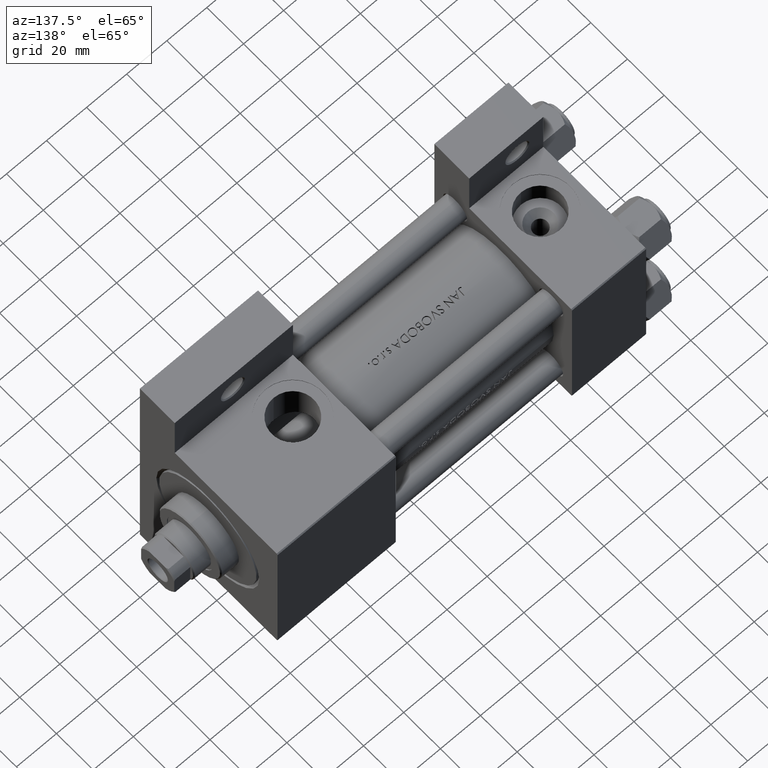
[diagram: clean part render]
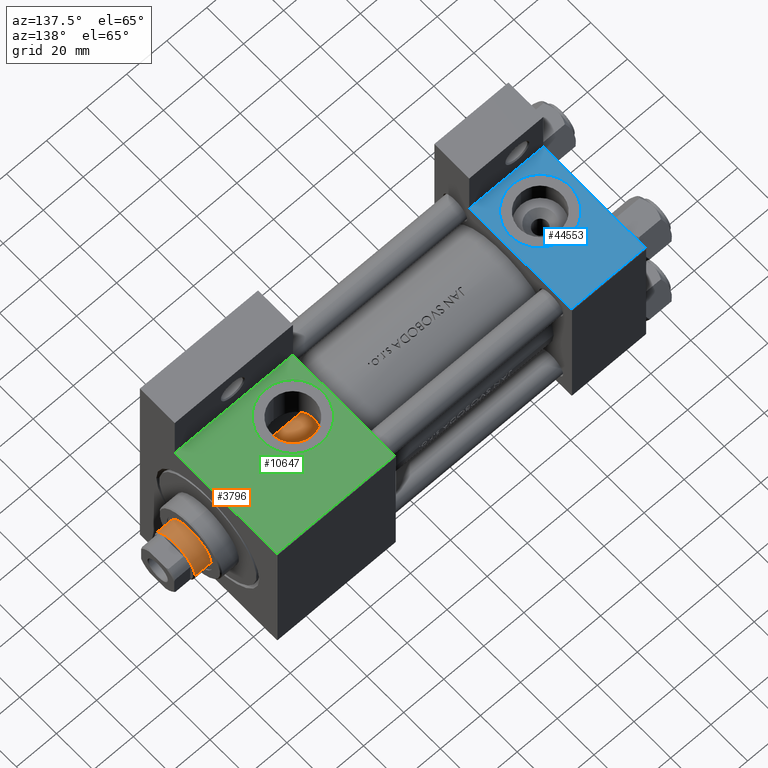
[diagram: same view with three faces highlighted in distinct colors, each labeled with its STEP entity id]
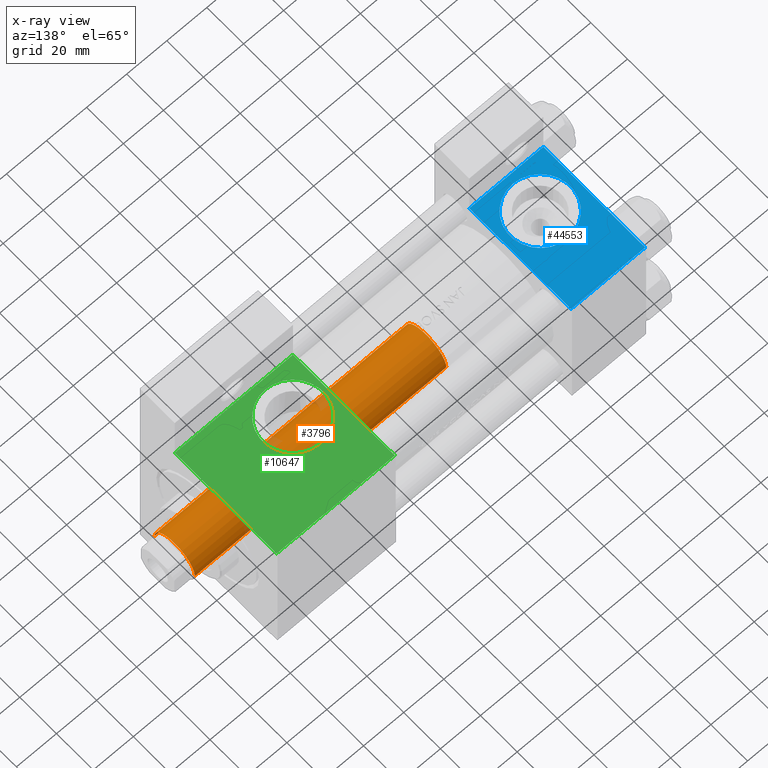
[diagram: x-ray of the same camera — body ghosted, the three highlighted faces saturated]
A machine part, auxiliary view with three faces highlighted in distinct colors.
The next image is the same camera in x-ray (body ghosted, the three faces saturated) — at least one of them is partly hidden behind the body in this view.
Their STEP definitions:

[orange] entity #3796 — the highlighted cylindrical surface (edge-blend (fillet) strip) has radius 11 mm, axis along (-1, 0, 0).
#1158 = CARTESIAN_POINT ( 'NONE',  ( 11.00000000000000000, 1.347111479062088405E-15, 163.5000000000000284 ) ) ;
#3750 = DIRECTION ( 'NONE',  ( -0.000000000000000000, -0.000000000000000000, -1.000000000000000000 ) ) ;
#3796 = ADVANCED_FACE ( 'NONE', ( #19197 ), #41603, .T. ) ;
#4563 = EDGE_CURVE ( 'NONE', #37420, #40276, #7387, .T. ) ;
#4701 = CIRCLE ( 'NONE', #26973, 11.00000000000000000 ) ;
#4931 = CARTESIAN_POINT ( 'NONE',  ( 11.00000000000000000, 1.347111479062088405E-15, 38.00000000000000000 ) ) ;
#5789 = CARTESIAN_POINT ( 'NONE',  ( 11.00000000000000000, 1.347111479062088405E-15, 164.0000000000000000 ) ) ;
#6078 = ORIENTED_EDGE ( 'NONE', *, *, #46017, .T. ) ;
#6602 = VECTOR ( 'NONE', #12764, 1000.000000000000000 ) ;
#6999 = DIRECTION ( 'NONE',  ( 0.000000000000000000, 0.000000000000000000, 1.000000000000000000 ) ) ;
#7387 = CIRCLE ( 'NONE', #48756, 11.00000000000000000 ) ;
#12764 = DIRECTION ( 'NONE',  ( -0.000000000000000000, -0.000000000000000000, -1.000000000000000000 ) ) ;
#14421 = EDGE_CURVE ( 'NONE', #37750, #40276, #27709, .T. ) ;
#14835 = VERTEX_POINT ( 'NONE', #42217 ) ;
#15222 = DIRECTION ( 'NONE',  ( -1.000000000000000000, 0.000000000000000000, 0.000000000000000000 ) ) ;
#15914 = DIRECTION ( 'NONE',  ( 0.000000000000000000, 0.000000000000000000, -1.000000000000000000 ) ) ;
#18700 = VECTOR ( 'NONE', #24311, 1000.000000000000000 ) ;
#19197 = FACE_OUTER_BOUND ( 'NONE', #34118, .T. ) ;
#22204 = CARTESIAN_POINT ( 'NONE',  ( 0.000000000000000000, 0.000000000000000000, 164.0000000000000000 ) ) ;
#23137 = EDGE_CURVE ( 'NONE', #14835, #37420, #28041, .T. ) ;
#24311 = DIRECTION ( 'NONE',  ( -0.000000000000000000, -0.000000000000000000, -1.000000000000000000 ) ) ;
#25462 = CARTESIAN_POINT ( 'NONE',  ( 0.000000000000000000, 0.000000000000000000, 38.00000000000000000 ) ) ;
#26621 = DIRECTION ( 'NONE',  ( 1.000000000000000000, 0.000000000000000000, 0.000000000000000000 ) ) ;
#26973 = AXIS2_PLACEMENT_3D ( 'NONE', #34807, #15914, #26621 ) ;
#27709 = LINE ( 'NONE', #5789, #6602 ) ;
#28041 = LINE ( 'NONE', #28537, #18700 ) ;
#28537 = CARTESIAN_POINT ( 'NONE',  ( -11.00000000000000000, 0.000000000000000000, 164.0000000000000000 ) ) ;
#32055 = AXIS2_PLACEMENT_3D ( 'NONE', #22204, #3750, #15222 ) ;
#32611 = ORIENTED_EDGE ( 'NONE', *, *, #4563, .T. ) ;
#34118 = EDGE_LOOP ( 'NONE', ( #44376, #6078, #42485, #32611 ) ) ;
#34807 = CARTESIAN_POINT ( 'NONE',  ( 0.000000000000000000, 0.000000000000000000, 163.5000000000000284 ) ) ;
#35592 = CARTESIAN_POINT ( 'NONE',  ( -11.00000000000000000, 0.000000000000000000, 38.00000000000000000 ) ) ;
#37420 = VERTEX_POINT ( 'NONE', #35592 ) ;
#37750 = VERTEX_POINT ( 'NONE', #1158 ) ;
#40276 = VERTEX_POINT ( 'NONE', #4931 ) ;
#41603 = CYLINDRICAL_SURFACE ( 'NONE', #32055, 11.00000000000000000 ) ;
#42217 = CARTESIAN_POINT ( 'NONE',  ( -11.00000000000000000, 0.000000000000000000, 163.5000000000000284 ) ) ;
#42485 = ORIENTED_EDGE ( 'NONE', *, *, #23137, .T. ) ;
#44376 = ORIENTED_EDGE ( 'NONE', *, *, #14421, .F. ) ;
#44845 = DIRECTION ( 'NONE',  ( 1.000000000000000000, 0.000000000000000000, 0.000000000000000000 ) ) ;
#46017 = EDGE_CURVE ( 'NONE', #37750, #14835, #4701, .T. ) ;
#48756 = AXIS2_PLACEMENT_3D ( 'NONE', #25462, #6999, #44845 ) ;

[blue] entity #44553 — the highlighted planar face has unit normal (0, 0, -1).
#1093 = EDGE_CURVE ( 'NONE', #21334, #26931, #8102, .T. ) ;
#1738 = VERTEX_POINT ( 'NONE', #35244 ) ;
#2004 = LINE ( 'NONE', #17953, #6841 ) ;
#2826 = FACE_BOUND ( 'NONE', #12936, .T. ) ;
#3724 = ORIENTED_EDGE ( 'NONE', *, *, #24806, .F. ) ;
#4115 = AXIS2_PLACEMENT_3D ( 'NONE', #26142, #36590, #41560 ) ;
#5953 = ORIENTED_EDGE ( 'NONE', *, *, #1093, .F. ) ;
#6179 = CIRCLE ( 'NONE', #48283, 15.00000000000000178 ) ;
#6841 = VECTOR ( 'NONE', #32390, 1000.000000000000000 ) ;
#6910 = DIRECTION ( 'NONE',  ( 0.000000000000000000, 0.000000000000000000, -1.000000000000000000 ) ) ;
#8102 = CIRCLE ( 'NONE', #4115, 15.00000000000000178 ) ;
#8939 = LINE ( 'NONE', #31349, #15608 ) ;
#10622 = VERTEX_POINT ( 'NONE', #35706 ) ;
#11292 = DIRECTION ( 'NONE',  ( 0.000000000000000000, -9.251858538542971581E-17, 1.000000000000000000 ) ) ;
#11886 = DIRECTION ( 'NONE',  ( 0.000000000000000000, -1.000000000000000000, -8.673617379884036705E-17 ) ) ;
#12936 = EDGE_LOOP ( 'NONE', ( #39940, #5953 ) ) ;
#13652 = EDGE_LOOP ( 'NONE', ( #3724, #29020, #43970, #15569 ) ) ;
#15036 = PLANE ( 'NONE',  #22957 ) ;
#15569 = ORIENTED_EDGE ( 'NONE', *, *, #24970, .T. ) ;
#15608 = VECTOR ( 'NONE', #31837, 1000.000000000000000 ) ;
#16726 = VERTEX_POINT ( 'NONE', #29624 ) ;
#17114 = VECTOR ( 'NONE', #39768, 1000.000000000000000 ) ;
#17953 = CARTESIAN_POINT ( 'NONE',  ( -7.145701223179000102E-16, -37.50000000000001421, -18.49999999999999645 ) ) ;
#20870 = CARTESIAN_POINT ( 'NONE',  ( 37.00000000000000000, -37.50000000000000711, 37.49999999999999289 ) ) ;
#21334 = VERTEX_POINT ( 'NONE', #22796 ) ;
#21920 = EDGE_CURVE ( 'NONE', #10622, #16726, #31054, .T. ) ;
#22796 = CARTESIAN_POINT ( 'NONE',  ( 18.50000000000000355, -37.50000000000000711, 14.99999999999999822 ) ) ;
#22957 = AXIS2_PLACEMENT_3D ( 'NONE', #48399, #30212, #11292 ) ;
#24806 = EDGE_CURVE ( 'NONE', #16726, #1738, #2004, .T. ) ;
#24970 = EDGE_CURVE ( 'NONE', #30023, #1738, #8939, .T. ) ;
#26142 = CARTESIAN_POINT ( 'NONE',  ( 18.50000000000000000, -37.50000000000000711, -3.469446951953614978E-15 ) ) ;
#26419 = EDGE_CURVE ( 'NONE', #10622, #30023, #33286, .T. ) ;
#26931 = VERTEX_POINT ( 'NONE', #47635 ) ;
#28434 = EDGE_CURVE ( 'NONE', #26931, #21334, #6179, .T. ) ;
#29020 = ORIENTED_EDGE ( 'NONE', *, *, #21920, .F. ) ;
#29624 = CARTESIAN_POINT ( 'NONE',  ( 37.00000000000000000, -37.50000000000000000, -18.50000000000000355 ) ) ;
#30023 = VERTEX_POINT ( 'NONE', #46635 ) ;
#30212 = DIRECTION ( 'NONE',  ( -0.000000000000000000, 1.000000000000000000, 9.251858538542971581E-17 ) ) ;
#31054 = LINE ( 'NONE', #20870, #17114 ) ;
#31349 = CARTESIAN_POINT ( 'NONE',  ( 0.000000000000000000, -37.50000000000000711, 37.49999999999999289 ) ) ;
#31837 = DIRECTION ( 'NONE',  ( 0.000000000000000000, 9.251858538542971581E-17, -1.000000000000000000 ) ) ;
#32390 = DIRECTION ( 'NONE',  ( -1.000000000000000000, 0.000000000000000000, 0.000000000000000000 ) ) ;
#33208 = FACE_OUTER_BOUND ( 'NONE', #13652, .T. ) ;
#33286 = LINE ( 'NONE', #41256, #35484 ) ;
#35244 = CARTESIAN_POINT ( 'NONE',  ( -7.145701223179004046E-16, -37.50000000000000711, -18.50000000000000355 ) ) ;
#35484 = VECTOR ( 'NONE', #36779, 1000.000000000000000 ) ;
#35706 = CARTESIAN_POINT ( 'NONE',  ( 37.00000000000000000, -37.50000000000000711, 36.99999999999999289 ) ) ;
#36590 = DIRECTION ( 'NONE',  ( 0.000000000000000000, -1.000000000000000000, -8.673617379884036705E-17 ) ) ;
#36779 = DIRECTION ( 'NONE',  ( -1.000000000000000000, 0.000000000000000000, 0.000000000000000000 ) ) ;
#39768 = DIRECTION ( 'NONE',  ( 0.000000000000000000, 9.251858538542971581E-17, -1.000000000000000000 ) ) ;
#39940 = ORIENTED_EDGE ( 'NONE', *, *, #28434, .F. ) ;
#41256 = CARTESIAN_POINT ( 'NONE',  ( 37.00000000000000000, -37.50000000000000711, 36.99999999999999289 ) ) ;
#41560 = DIRECTION ( 'NONE',  ( 0.000000000000000000, 0.000000000000000000, -1.000000000000000000 ) ) ;
#43970 = ORIENTED_EDGE ( 'NONE', *, *, #26419, .T. ) ;
#44553 = ADVANCED_FACE ( 'NONE', ( #2826, #33208 ), #15036, .F. ) ;
#45986 = CARTESIAN_POINT ( 'NONE',  ( 18.50000000000000000, -37.50000000000000711, -3.469446951953614978E-15 ) ) ;
#46635 = CARTESIAN_POINT ( 'NONE',  ( 0.000000000000000000, -37.50000000000000711, 36.99999999999999289 ) ) ;
#47635 = CARTESIAN_POINT ( 'NONE',  ( 18.50000000000000000, -37.50000000000000711, -15.00000000000000533 ) ) ;
#48283 = AXIS2_PLACEMENT_3D ( 'NONE', #45986, #11886, #6910 ) ;
#48399 = CARTESIAN_POINT ( 'NONE',  ( 37.00000000000000000, -37.50000000000000711, 37.49999999999999289 ) ) ;

[green] entity #10647 — the highlighted planar face has unit normal (0, -0, -1).
#1347 = AXIS2_PLACEMENT_3D ( 'NONE', #33074, #14410, #10175 ) ;
#1616 = CARTESIAN_POINT ( 'NONE',  ( 125.0000000000000000, -37.50000000000000000, -18.50000000000000000 ) ) ;
#1756 = LINE ( 'NONE', #47577, #4593 ) ;
#3420 = VERTEX_POINT ( 'NONE', #34172 ) ;
#4571 = EDGE_CURVE ( 'NONE', #16113, #5887, #9765, .T. ) ;
#4593 = VECTOR ( 'NONE', #5255, 1000.000000000000000 ) ;
#4905 = EDGE_LOOP ( 'NONE', ( #16666, #38513 ) ) ;
#5255 = DIRECTION ( 'NONE',  ( 0.000000000000000000, -9.251858538542972814E-17, -1.000000000000000000 ) ) ;
#5502 = CARTESIAN_POINT ( 'NONE',  ( 125.0000000000000000, -37.50000000000000000, 36.99999999999995026 ) ) ;
#5887 = VERTEX_POINT ( 'NONE', #5502 ) ;
#6239 = DIRECTION ( 'NONE',  ( 0.000000000000000000, 0.000000000000000000, -1.000000000000000000 ) ) ;
#7234 = ORIENTED_EDGE ( 'NONE', *, *, #4571, .T. ) ;
#9765 = LINE ( 'NONE', #47613, #33659 ) ;
#10175 = DIRECTION ( 'NONE',  ( 0.000000000000000000, 0.000000000000000000, -1.000000000000000000 ) ) ;
#10647 = ADVANCED_FACE ( 'NONE', ( #15212, #41343 ), #15459, .F. ) ;
#10731 = DIRECTION ( 'NONE',  ( 0.000000000000000000, 1.000000000000000000, -9.251858538542972814E-17 ) ) ;
#11263 = EDGE_CURVE ( 'NONE', #23017, #3420, #29290, .T. ) ;
#13725 = ORIENTED_EDGE ( 'NONE', *, *, #42683, .T. ) ;
#13948 = CARTESIAN_POINT ( 'NONE',  ( 142.0000000000000284, -37.50000000000000000, 15.00000000000002842 ) ) ;
#14410 = DIRECTION ( 'NONE',  ( 0.000000000000000000, -1.000000000000000000, -8.673617379884036705E-17 ) ) ;
#14958 = VECTOR ( 'NONE', #36322, 1000.000000000000000 ) ;
#15212 = FACE_BOUND ( 'NONE', #4905, .T. ) ;
#15459 = PLANE ( 'NONE',  #42293 ) ;
#16011 = ORIENTED_EDGE ( 'NONE', *, *, #11263, .T. ) ;
#16113 = VERTEX_POINT ( 'NONE', #41243 ) ;
#16348 = EDGE_LOOP ( 'NONE', ( #44493, #7234, #13725, #16011 ) ) ;
#16666 = ORIENTED_EDGE ( 'NONE', *, *, #41910, .F. ) ;
#16733 = VERTEX_POINT ( 'NONE', #13948 ) ;
#18092 = CIRCLE ( 'NONE', #38759, 15.00000000000002487 ) ;
#19664 = CIRCLE ( 'NONE', #1347, 15.00000000000002487 ) ;
#21170 = LINE ( 'NONE', #43311, #14958 ) ;
#21242 = DIRECTION ( 'NONE',  ( -1.000000000000000000, 0.000000000000000000, 0.000000000000000000 ) ) ;
#23017 = VERTEX_POINT ( 'NONE', #1616 ) ;
#26543 = CARTESIAN_POINT ( 'NONE',  ( 125.0000000000000000, -37.50000000000000000, -18.50000000000000000 ) ) ;
#26661 = CARTESIAN_POINT ( 'NONE',  ( 184.0000000000000000, -37.50000000000000000, 37.49999999999997868 ) ) ;
#29290 = LINE ( 'NONE', #26543, #46237 ) ;
#33074 = CARTESIAN_POINT ( 'NONE',  ( 142.0000000000000284, -37.50000000000000000, 3.469446951953615767E-15 ) ) ;
#33312 = EDGE_CURVE ( 'NONE', #16113, #3420, #21170, .T. ) ;
#33659 = VECTOR ( 'NONE', #21242, 1000.000000000000000 ) ;
#34172 = CARTESIAN_POINT ( 'NONE',  ( 184.0000000000000000, -37.50000000000000711, -18.50000000000000355 ) ) ;
#35622 = DIRECTION ( 'NONE',  ( 0.000000000000000000, -1.000000000000000000, -8.673617379884036705E-17 ) ) ;
#36322 = DIRECTION ( 'NONE',  ( 0.000000000000000000, -9.251858538542972814E-17, -1.000000000000000000 ) ) ;
#36678 = EDGE_CURVE ( 'NONE', #16733, #43338, #19664, .T. ) ;
#37107 = DIRECTION ( 'NONE',  ( 0.000000000000000000, 9.251858538542972814E-17, 1.000000000000000000 ) ) ;
#37725 = DIRECTION ( 'NONE',  ( 1.000000000000000000, -3.528251137579946599E-16, 0.000000000000000000 ) ) ;
#38513 = ORIENTED_EDGE ( 'NONE', *, *, #36678, .F. ) ;
#38759 = AXIS2_PLACEMENT_3D ( 'NONE', #40112, #35622, #6239 ) ;
#39751 = CARTESIAN_POINT ( 'NONE',  ( 142.0000000000000284, -37.50000000000000000, -15.00000000000002132 ) ) ;
#40112 = CARTESIAN_POINT ( 'NONE',  ( 142.0000000000000284, -37.50000000000000000, 3.469446951953615767E-15 ) ) ;
#41243 = CARTESIAN_POINT ( 'NONE',  ( 184.0000000000000000, -37.50000000000000000, 36.99999999999995026 ) ) ;
#41343 = FACE_OUTER_BOUND ( 'NONE', #16348, .T. ) ;
#41910 = EDGE_CURVE ( 'NONE', #43338, #16733, #18092, .T. ) ;
#42293 = AXIS2_PLACEMENT_3D ( 'NONE', #26661, #10731, #37107 ) ;
#42683 = EDGE_CURVE ( 'NONE', #5887, #23017, #1756, .T. ) ;
#43311 = CARTESIAN_POINT ( 'NONE',  ( 184.0000000000000000, -37.50000000000000000, 37.49999999999997868 ) ) ;
#43338 = VERTEX_POINT ( 'NONE', #39751 ) ;
#44493 = ORIENTED_EDGE ( 'NONE', *, *, #33312, .F. ) ;
#46237 = VECTOR ( 'NONE', #37725, 1000.000000000000000 ) ;
#47577 = CARTESIAN_POINT ( 'NONE',  ( 125.0000000000000000, -37.50000000000000000, 37.49999999999997868 ) ) ;
#47613 = CARTESIAN_POINT ( 'NONE',  ( 184.0000000000000000, -37.50000000000000000, 36.99999999999995026 ) ) ;